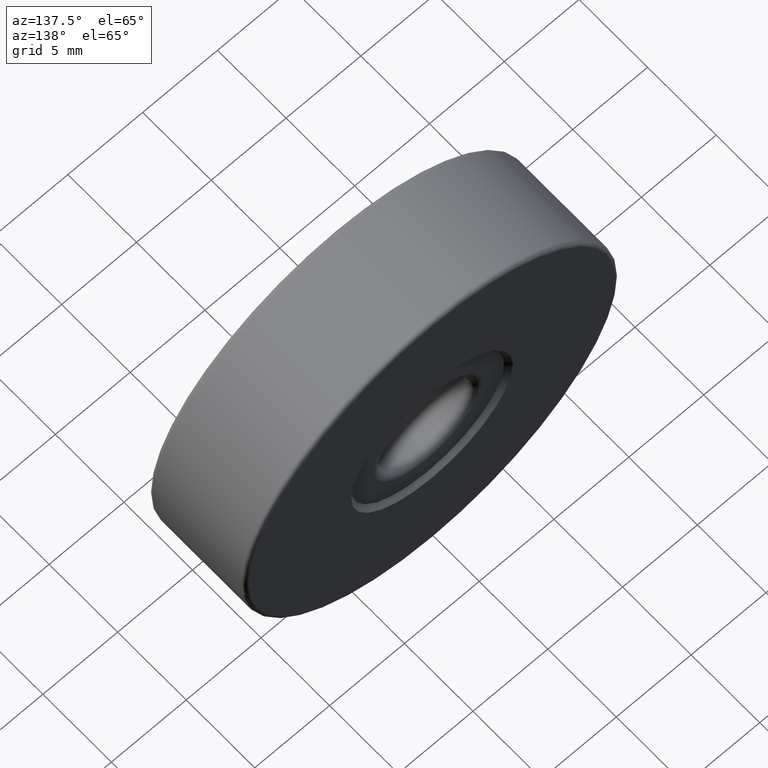
[diagram: clean part render]
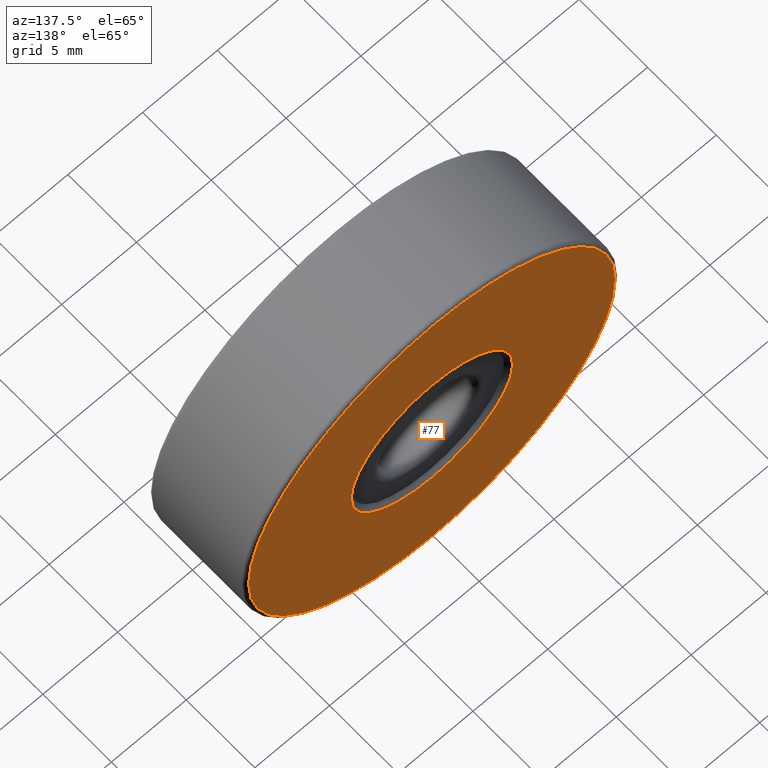
[diagram: same view with one face highlighted and labeled with its STEP entity id]
A machine part, auxiliary view. The second image highlights one B-rep face of the part: STEP entity #77.
In plain terms, the highlighted planar face has unit normal (0, 1, 0).
Its self-contained STEP definition (entity closure, byte-faithful):
#43 = EDGE_LOOP ( 'NONE', ( #557, #251 ) ) ;
#44 = AXIS2_PLACEMENT_3D ( 'NONE', #536, #497, #157 ) ;
#53 = VERTEX_POINT ( 'NONE', #79 ) ;
#57 = VERTEX_POINT ( 'NONE', #462 ) ;
#61 = EDGE_CURVE ( 'NONE', #533, #57, #385, .T. ) ;
#77 = ADVANCED_FACE ( 'NONE', ( #291, #329 ), #283, .T. ) ;
#79 = CARTESIAN_POINT ( 'NONE',  ( -4.682026255059964726, 1.905024023001725242, 30.39999999999999503 ) ) ;
#99 = CARTESIAN_POINT ( 'NONE',  ( -4.682026255059964726, 1.905024023001725242, 25.00000000000000000 ) ) ;
#151 = EDGE_CURVE ( 'NONE', #398, #53, #197, .T. ) ;
#157 = DIRECTION ( 'NONE',  ( 0.0000000000000000000, 0.0000000000000000000, 1.000000000000000000 ) ) ;
#185 = CARTESIAN_POINT ( 'NONE',  ( -4.682026255059964726, 1.905024023001725242, 25.00000000000000000 ) ) ;
#191 = DIRECTION ( 'NONE',  ( 0.0000000000000000000, -0.0000000000000000000, 1.000000000000000000 ) ) ;
#193 = DIRECTION ( 'NONE',  ( 0.0000000000000000000, 0.0000000000000000000, 1.000000000000000000 ) ) ;
#197 = CIRCLE ( 'NONE', #297, 5.399999999999995026 ) ;
#207 = AXIS2_PLACEMENT_3D ( 'NONE', #420, #522, #193 ) ;
#251 = ORIENTED_EDGE ( 'NONE', *, *, #151, .T. ) ;
#261 = EDGE_LOOP ( 'NONE', ( #425, #324 ) ) ;
#270 = CARTESIAN_POINT ( 'NONE',  ( -4.682026255059964726, 1.905024023001725242, 37.25000000000000711 ) ) ;
#283 = PLANE ( 'NONE',  #417 ) ;
#291 = FACE_OUTER_BOUND ( 'NONE', #261, .T. ) ;
#294 = EDGE_CURVE ( 'NONE', #53, #398, #317, .T. ) ;
#297 = AXIS2_PLACEMENT_3D ( 'NONE', #606, #558, #377 ) ;
#317 = CIRCLE ( 'NONE', #44, 5.399999999999995026 ) ;
#324 = ORIENTED_EDGE ( 'NONE', *, *, #581, .T. ) ;
#329 = FACE_BOUND ( 'NONE', #43, .T. ) ;
#377 = DIRECTION ( 'NONE',  ( 0.0000000000000000000, 0.0000000000000000000, 1.000000000000000000 ) ) ;
#385 = CIRCLE ( 'NONE', #559, 12.25000000000000355 ) ;
#398 = VERTEX_POINT ( 'NONE', #499 ) ;
#417 = AXIS2_PLACEMENT_3D ( 'NONE', #99, #479, #191 ) ;
#420 = CARTESIAN_POINT ( 'NONE',  ( -4.682026255059964726, 1.905024023001725242, 25.00000000000000000 ) ) ;
#425 = ORIENTED_EDGE ( 'NONE', *, *, #61, .T. ) ;
#428 = DIRECTION ( 'NONE',  ( 0.0000000000000000000, 0.0000000000000000000, 1.000000000000000000 ) ) ;
#438 = CIRCLE ( 'NONE', #207, 12.25000000000000355 ) ;
#462 = CARTESIAN_POINT ( 'NONE',  ( -4.682026255059962949, 1.905024023001725242, 12.75000000000000178 ) ) ;
#479 = DIRECTION ( 'NONE',  ( 0.0000000000000000000, 1.000000000000000000, 0.0000000000000000000 ) ) ;
#497 = DIRECTION ( 'NONE',  ( -0.0000000000000000000, -1.000000000000000000, -0.0000000000000000000 ) ) ;
#499 = CARTESIAN_POINT ( 'NONE',  ( -4.682026255059963837, 1.905024023001725242, 19.60000000000000497 ) ) ;
#513 = DIRECTION ( 'NONE',  ( 0.0000000000000000000, 1.000000000000000000, 0.0000000000000000000 ) ) ;
#522 = DIRECTION ( 'NONE',  ( 0.0000000000000000000, 1.000000000000000000, 0.0000000000000000000 ) ) ;
#533 = VERTEX_POINT ( 'NONE', #270 ) ;
#536 = CARTESIAN_POINT ( 'NONE',  ( -4.682026255059964726, 1.905024023001725242, 25.00000000000000000 ) ) ;
#557 = ORIENTED_EDGE ( 'NONE', *, *, #294, .T. ) ;
#558 = DIRECTION ( 'NONE',  ( -0.0000000000000000000, -1.000000000000000000, -0.0000000000000000000 ) ) ;
#559 = AXIS2_PLACEMENT_3D ( 'NONE', #185, #513, #428 ) ;
#581 = EDGE_CURVE ( 'NONE', #57, #533, #438, .T. ) ;
#606 = CARTESIAN_POINT ( 'NONE',  ( -4.682026255059964726, 1.905024023001725242, 25.00000000000000000 ) ) ;